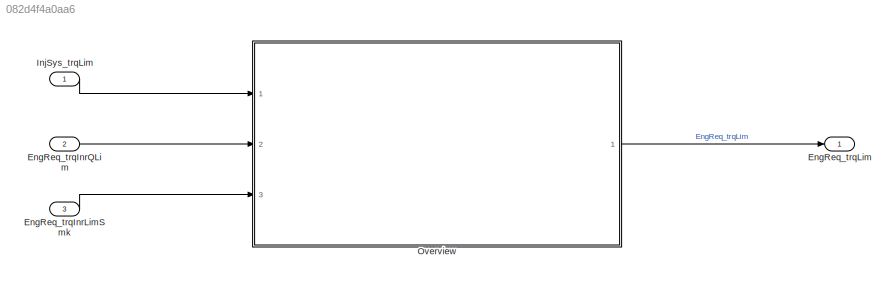
MODEL slx_082d4f4a0aa6
KIND model
CONFIG AbsTol = auto
CONFIG EnableMultiTasking = off
CONFIG FixedStep = 0.001
CONFIG MaxStep = auto
CONFIG MinStep = auto
CONFIG RelTol = 1e-3
CONFIG SampleTimeConstraint = Unconstrained
CONFIG Solver = FixedStepDiscrete
CONFIG SolverName = FixedStepDiscrete
CONFIG StartTime = 0.0
CONFIG StopTime = Inf
BLOCK [Inport] EngReq_trqInrLimSmk
  Description = Limiting torque smoke limit
  IconDisplay = Port number
  OutDataTypeStr = Torq
  OutMax = 3276.7
  OutMin = -3276.8
  Port = 3
  PortDimensions = [1 1]
  Unit = Nm
BLOCK [Inport] EngReq_trqInrQLim
  Description = Limiting torque due to limitation quantities (except smoke limitation)
  IconDisplay = Port number
  OutDataTypeStr = Torq
  OutMax = 3276.7
  OutMin = -3276.8
  Port = 2
  PortDimensions = [1 1]
  Unit = Nm
BLOCK [Outport] EngReq_trqLim
  IconDisplay = Port number
BLOCK [Inport] InjSys_trqLim
  Description = Torque limitation of injection system
  IconDisplay = Port number
  OutDataTypeStr = Torq
  OutMax = 3276.7
  OutMin = -3276.8
  PortDimensions = [1 1]
  Unit = Nm
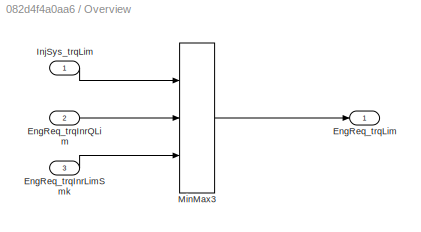
BLOCK [SubSystem] Overview
  Ports = [3, 1]
  RequestExecContextInheritance = off
BLOCK [Inport] Overview/EngReq_trqInrLimSmk
  IconDisplay = Port number
  Port = 3
  Tag = Nm
BLOCK [Inport] Overview/EngReq_trqInrQLim
  IconDisplay = Port number
  Port = 2
  Tag = Nm
BLOCK [Outport] Overview/EngReq_trqLim
  IconDisplay = Port number
  Tag = Nm
BLOCK [Inport] Overview/InjSys_trqLim
  IconDisplay = Port number
  Tag = Nm
BLOCK [MinMax] Overview/MinMax3
  Inputs = 3
  Ports = [3, 1]
  SaturateOnIntegerOverflow = off
LINE EngReq_trqInrLimSmk:1 -> Overview:3
LINE EngReq_trqInrQLim:1 -> Overview:2
LINE InjSys_trqLim:1 -> Overview:1
LINE Overview/EngReq_trqInrLimSmk:1 -> Overview/MinMax3:3
LINE Overview/EngReq_trqInrQLim:1 -> Overview/MinMax3:2
LINE Overview/InjSys_trqLim:1 -> Overview/MinMax3:1
LINE Overview/MinMax3:1 -> Overview/EngReq_trqLim:1
LINE Overview:1 -> EngReq_trqLim:1
